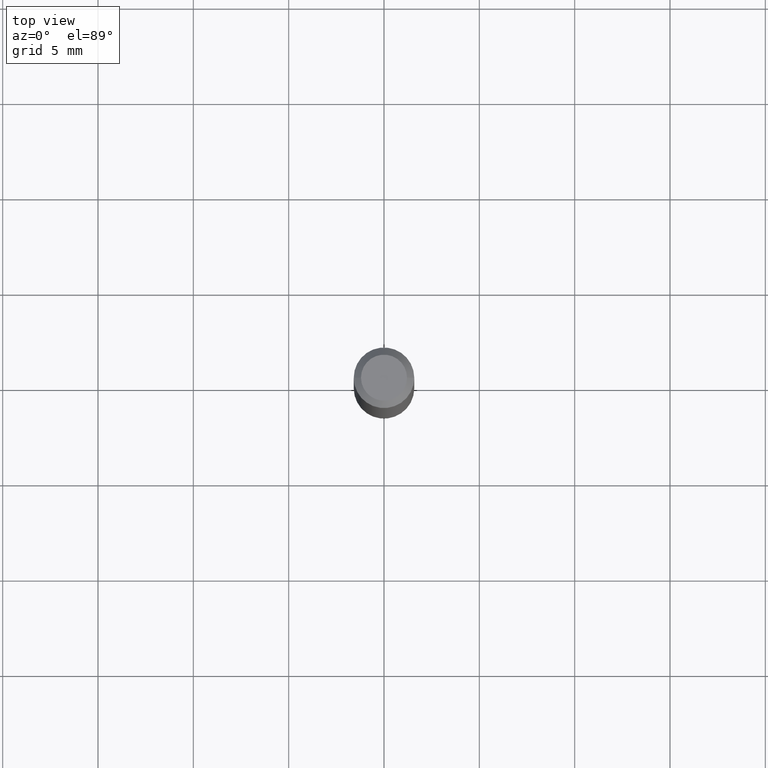
[diagram: clean part render]
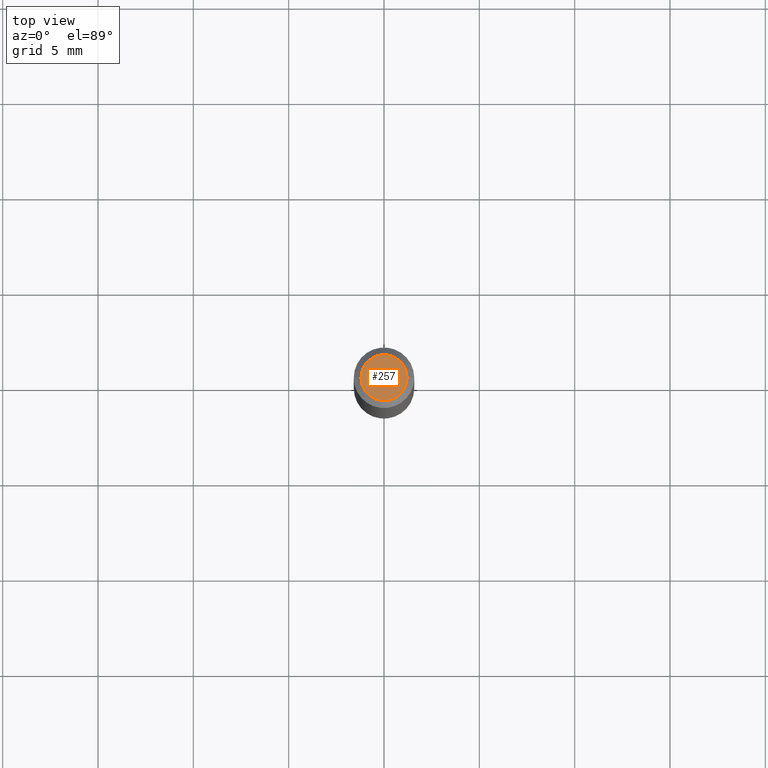
[diagram: same view with one face highlighted and labeled with its STEP entity id]
A machine part, top view. The second image highlights one B-rep face of the part: STEP entity #257.
In plain terms, the highlighted planar face has unit normal (0, -0, -1).
Its self-contained STEP definition (entity closure, byte-faithful):
#2 = ORIENTED_EDGE ( 'NONE', *, *, #208, .T. ) ;
#13 = CARTESIAN_POINT ( 'NONE',  ( 3.316907271900976096E-16, 0.04749999999999999362, -3.263246605298391118E-16 ) ) ;
#24 = EDGE_CURVE ( 'NONE', #193, #128, #249, .T. ) ;
#29 = DIRECTION ( 'NONE',  ( -2.445468806185136597E-29, 3.491481338843145583E-15, 1.000000000000000000 ) ) ;
#99 = CARTESIAN_POINT ( 'NONE',  ( -0.04749999999999999362, 3.578768372314205575E-16, -3.209585938695818960E-16 ) ) ;
#117 = AXIS2_PLACEMENT_3D ( 'NONE', #446, #122, #382 ) ;
#122 = DIRECTION ( 'NONE',  ( -2.445468806185136597E-29, 3.491481338843145583E-15, 1.000000000000000000 ) ) ;
#128 = VERTEX_POINT ( 'NONE', #99 ) ;
#169 = DIRECTION ( 'NONE',  ( 1.000000000000000000, -6.982962677686267499E-15, 4.852736867747366768E-29 ) ) ;
#171 = CIRCLE ( 'NONE', #117, 0.04749999999999999362 ) ;
#190 = ORIENTED_EDGE ( 'NONE', *, *, #24, .T. ) ;
#193 = VERTEX_POINT ( 'NONE', #414 ) ;
#207 = FACE_OUTER_BOUND ( 'NONE', #369, .T. ) ;
#208 = EDGE_CURVE ( 'NONE', #128, #193, #171, .T. ) ;
#249 = CIRCLE ( 'NONE', #312, 0.04749999999999999362 ) ;
#257 = ADVANCED_FACE ( 'NONE', ( #207 ), #393, .F. ) ;
#258 = AXIS2_PLACEMENT_3D ( 'NONE', #13, #441, #417 ) ;
#312 = AXIS2_PLACEMENT_3D ( 'NONE', #461, #29, #169 ) ;
#369 = EDGE_LOOP ( 'NONE', ( #2, #190 ) ) ;
#382 = DIRECTION ( 'NONE',  ( 1.000000000000000000, -6.982962677686267499E-15, 4.852736867747366768E-29 ) ) ;
#393 = PLANE ( 'NONE',  #258 ) ;
#414 = CARTESIAN_POINT ( 'NONE',  ( 0.04749999999999999362, -4.035134999187584047E-16, -3.209585938695769163E-16 ) ) ;
#417 = DIRECTION ( 'NONE',  ( -1.000000000000000000, 6.982962677686265922E-15, -4.876176775795935793E-29 ) ) ;
#441 = DIRECTION ( 'NONE',  ( 2.438088387897960049E-29, -3.491481338843145188E-15, -1.000000000000000000 ) ) ;
#446 = CARTESIAN_POINT ( 'NONE',  ( 7.848942293851005666E-45, -1.120620941036972666E-30, -3.209585938695794308E-16 ) ) ;
#461 = CARTESIAN_POINT ( 'NONE',  ( 7.848942293851005666E-45, -1.120620941036972666E-30, -3.209585938695794308E-16 ) ) ;